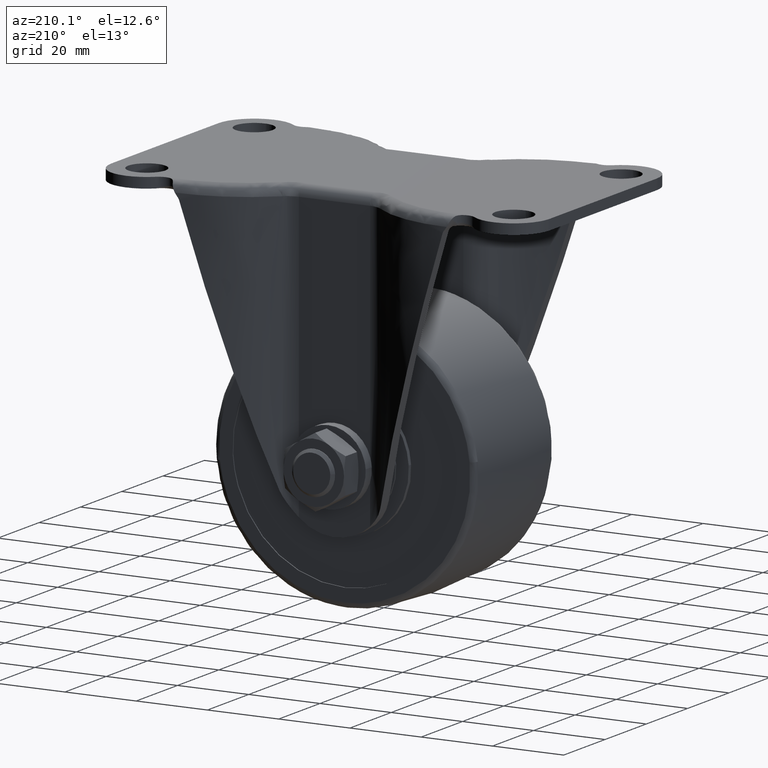
[diagram: clean part render]
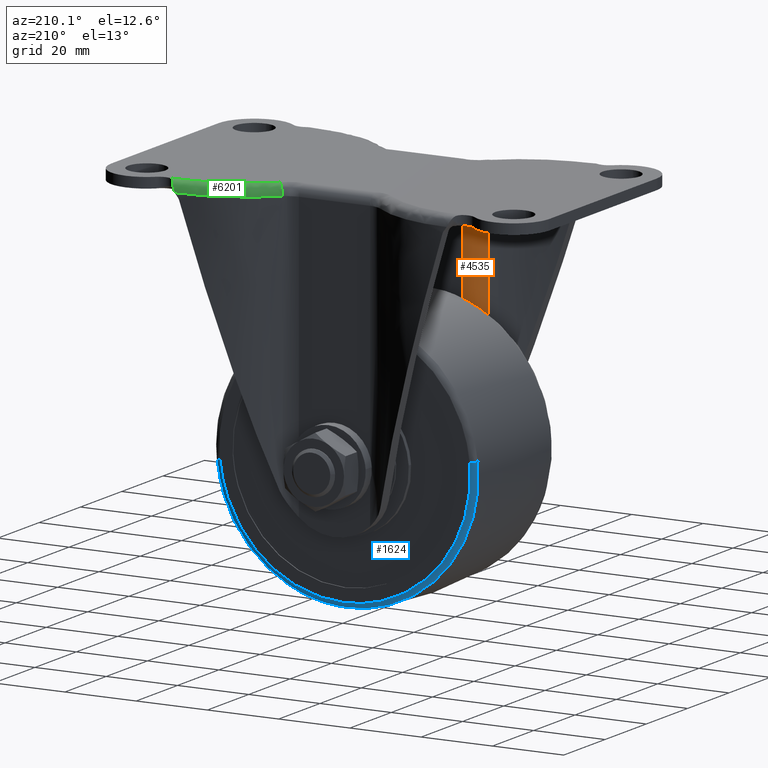
[diagram: same view with three faces highlighted in distinct colors, each labeled with its STEP entity id]
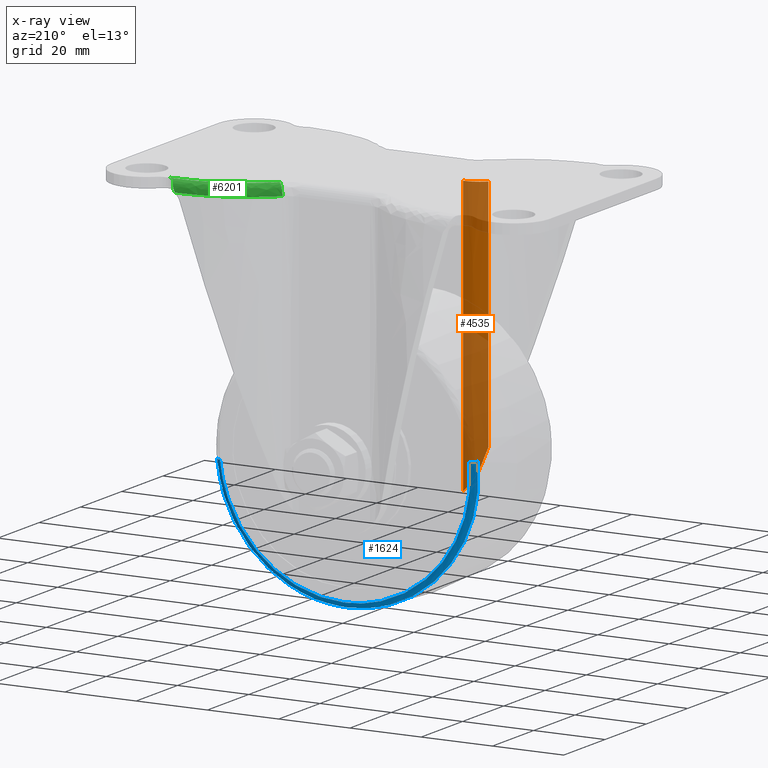
[diagram: x-ray of the same camera — body ghosted, the three highlighted faces saturated]
A machine part, auxiliary view with three faces highlighted in distinct colors.
The next image is the same camera in x-ray (body ghosted, the three faces saturated) — at least one of them is partly hidden behind the body in this view.
Their STEP definitions:

[orange] entity #4535 — the highlighted face is a freeform B-spline surface patch.
#3486=CARTESIAN_POINT('',(-15.730752308236299,-23.383727355105648,-71.515643156612597));
#3487=VERTEX_POINT('',#3486);
#3501=CARTESIAN_POINT('',(-14.298686586812821,-22.299387996278298,-76.032943303354713));
#3502=VERTEX_POINT('',#3501);
#3503=CARTESIAN_POINT('',(-14.298686586812821,-22.299387996278298,-76.032943303354713));
#3504=CARTESIAN_POINT('',(-15.073023069848221,-22.764557225339239,-73.590380608001098));
#3505=CARTESIAN_POINT('',(-15.730752308236299,-23.383727355105631,-71.515643156612597));
#3513=(BOUNDED_CURVE()B_SPLINE_CURVE(2,(#3503,#3504,#3505),.UNSPECIFIED.,.F.,.U.)CURVE()GEOMETRIC_REPRESENTATION_ITEM()QUASI_UNIFORM_CURVE()RATIONAL_B_SPLINE_CURVE((1.0,0.994267504772959,1.0))REPRESENTATION_ITEM(''));
#3514=EDGE_CURVE('',#3502,#3487,#3513,.T.);
#3711=CARTESIAN_POINT('',(-9.973043999999890,-21.100000000000001,-82.704393145217892));
#3712=VERTEX_POINT('',#3711);
#3713=CARTESIAN_POINT('',(-14.298686586812810,-22.299387996278561,-76.032943303354770));
#3714=CARTESIAN_POINT('',(-14.095654674735041,-22.177420092033991,-76.673386037582461));
#3715=CARTESIAN_POINT('',(-13.852419175674211,-22.042892852302799,-77.292334523167710));
#3716=CARTESIAN_POINT('',(-13.286604802238640,-21.774825958858010,-78.493339155701548));
#3717=CARTESIAN_POINT('',(-12.964040484386651,-21.641141067435090,-79.075370962538969));
#3718=CARTESIAN_POINT('',(-12.507680185186979,-21.490951959161251,-79.781681343823834));
#3719=CARTESIAN_POINT('',(-12.413891389612630,-21.461826516318869,-79.921612563622631));
#3720=CARTESIAN_POINT('',(-12.222124973507420,-21.406076116000069,-80.197581246204521));
#3721=CARTESIAN_POINT('',(-12.124024630329229,-21.379409943788570,-80.333810408919348));
#3722=CARTESIAN_POINT('',(-11.823063145983721,-21.303644959530391,-80.737305924257328));
#3723=CARTESIAN_POINT('',(-11.613551615439100,-21.258768572167529,-80.999387518208934));
#3724=CARTESIAN_POINT('',(-11.176502485969291,-21.183699821594342,-81.509931967904151));
#3725=CARTESIAN_POINT('',(-10.948966336241231,-21.153496808395989,-81.758394647658363));
#3726=CARTESIAN_POINT('',(-10.475245238166799,-21.111654860647558,-82.241683442371823));
#3727=CARTESIAN_POINT('',(-10.229063300052800,-21.100000010509159,-82.476510024690654));
#3728=CARTESIAN_POINT('',(-9.973043999999893,-21.100000000000009,-82.704393145217892));
#3729=B_SPLINE_CURVE_WITH_KNOTS('',3,(#3713,#3714,#3715,#3716,#3717,#3718,#3719,#3720,#3721,#3722,#3723,#3724,#3725,#3726,#3727,#3728),.UNSPECIFIED.,.F.,.U.,(4,2,2,2,2,2,2,4),(0.0,0.249999999999996,0.499999999999992,0.562499999999992,0.624999999999994,0.749999999999996,0.874999999999998,1.0),.UNSPECIFIED.);
#3730=EDGE_CURVE('',#3502,#3712,#3729,.T.);
#3887=CARTESIAN_POINT('',(-15.730752308236299,-23.383727355105648,-5.400000000000000));
#3888=VERTEX_POINT('',#3887);
#3922=CARTESIAN_POINT('',(-15.730752308236299,-23.383727355105648,-71.515643156612597));
#3923=CARTESIAN_POINT('',(-15.730752308236299,-23.383727355105648,-5.400000000000000));
#3924=QUASI_UNIFORM_CURVE('',1,(#3922,#3923),.UNSPECIFIED.,.F.,.U.);
#3925=EDGE_CURVE('',#3487,#3888,#3924,.T.);
#4496=CARTESIAN_POINT('',(-15.950432461907139,-23.598235598282340,-84.637002973848325));
#4497=CARTESIAN_POINT('',(-15.950432461907139,-23.598235598282340,-3.419074925653803));
#4498=CARTESIAN_POINT('',(-13.355080985150313,-20.969627641289470,-84.637002973848340));
#4499=CARTESIAN_POINT('',(-13.355080985150313,-20.969627641289470,-3.419074925653803));
#4500=CARTESIAN_POINT('',(-9.663616085908981,-21.105701066833142,-84.637002973848340));
#4501=CARTESIAN_POINT('',(-9.663616085908981,-21.105701066833142,-3.419074925653803));
#4509=(BOUNDED_SURFACE()B_SPLINE_SURFACE(1,2,((#4496,#4498,#4500),(#4497,#4499,#4501)),.UNSPECIFIED.,.F.,.F.,.U.)B_SPLINE_SURFACE_WITH_KNOTS((2,2),(3,3),(0.0,81.217928048194537),(0.0,7.061585249905714),.UNSPECIFIED.)GEOMETRIC_REPRESENTATION_ITEM()RATIONAL_B_SPLINE_SURFACE(((0.999478258689410,0.911144855116366,0.991249597602768),(0.999478258689410,0.911144855116366,0.991249597602768)))REPRESENTATION_ITEM('')SURFACE());
#4510=ORIENTED_EDGE('',*,*,#3925,.T.);
#4511=CARTESIAN_POINT('',(-9.973044000000000,-21.100000000000001,-5.400000000000000));
#4512=VERTEX_POINT('',#4511);
#4513=CARTESIAN_POINT('',(-15.730752308236310,-23.383727355105641,-5.400000000000000));
#4514=CARTESIAN_POINT('',(-13.304804912206047,-21.100000136763192,-5.400000000000000));
#4515=CARTESIAN_POINT('',(-9.973044000000000,-21.100000000000009,-5.400000000000000));
#4523=(BOUNDED_CURVE()B_SPLINE_CURVE(2,(#4513,#4514,#4515),.UNSPECIFIED.,.F.,.U.)CURVE()GEOMETRIC_REPRESENTATION_ITEM()QUASI_UNIFORM_CURVE()RATIONAL_B_SPLINE_CURVE((1.0,0.929550354729903,1.0))REPRESENTATION_ITEM(''));
#4524=EDGE_CURVE('',#3888,#4512,#4523,.T.);
#4525=ORIENTED_EDGE('',*,*,#4524,.T.);
#4526=CARTESIAN_POINT('',(-9.973043999999890,-21.100000000000001,-82.704393145217892));
#4527=CARTESIAN_POINT('',(-9.973044000000000,-21.100000000000001,-5.400000000000000));
#4528=QUASI_UNIFORM_CURVE('',1,(#4526,#4527),.UNSPECIFIED.,.F.,.U.);
#4529=EDGE_CURVE('',#3712,#4512,#4528,.T.);
#4530=ORIENTED_EDGE('',*,*,#4529,.F.);
#4531=ORIENTED_EDGE('',*,*,#3730,.F.);
#4532=ORIENTED_EDGE('',*,*,#3514,.T.);
#4533=EDGE_LOOP('',(#4510,#4525,#4530,#4531,#4532));
#4534=FACE_OUTER_BOUND('',#4533,.T.);
#4535=ADVANCED_FACE('',(#4534),#4509,.T.);

[blue] entity #1624 — the highlighted face is a freeform B-spline surface patch.
#1392=CARTESIAN_POINT('',(-35.049223704759932,19.0,-64.964549374233371));
#1393=VERTEX_POINT('',#1392);
#1394=CARTESIAN_POINT('',(0.0,19.0,-103.727084639409000));
#1395=VERTEX_POINT('',#1394);
#1396=CARTESIAN_POINT('',(-35.049223704759918,19.0,-64.964549374233371));
#1397=CARTESIAN_POINT('',(-35.227084656542004,18.999999999999996,-66.727800784403442));
#1398=CARTESIAN_POINT('',(-35.227084656101013,19.0,-68.499999998316255));
#1399=CARTESIAN_POINT('',(-35.227084647335140,18.999999999999993,-103.727084638609470));
#1400=CARTESIAN_POINT('',(0.0,19.0,-103.727084639409000));
#1408=(BOUNDED_CURVE()B_SPLINE_CURVE(2,(#1396,#1397,#1398,#1399,#1400),.UNSPECIFIED.,.F.,.U.)B_SPLINE_CURVE_WITH_KNOTS((3,2,3),(0.732576558916030,0.750000000000000,1.0),.UNSPECIFIED.)CURVE()GEOMETRIC_REPRESENTATION_ITEM()RATIONAL_B_SPLINE_CURVE((0.962019632126639,0.979587169032438,1.0,0.707106781186548,1.0))REPRESENTATION_ITEM(''));
#1409=EDGE_CURVE('',#1393,#1395,#1408,.T.);
#1426=CARTESIAN_POINT('',(35.049223704759932,19.0,-72.035450625766615));
#1427=VERTEX_POINT('',#1426);
#1443=CARTESIAN_POINT('',(0.0,19.0,-103.727084639409000));
#1444=CARTESIAN_POINT('',(31.852456536322716,19.0,-103.727084640293230));
#1445=CARTESIAN_POINT('',(35.049223704759932,18.999999999999996,-72.035450625766615));
#1453=(BOUNDED_CURVE()B_SPLINE_CURVE(2,(#1443,#1444,#1445),.UNSPECIFIED.,.F.,.U.)B_SPLINE_CURVE_WITH_KNOTS((3,3),(0.0,0.232576558916030),.UNSPECIFIED.)CURVE()GEOMETRIC_REPRESENTATION_ITEM()RATIONAL_B_SPLINE_CURVE((1.0,0.727519612154109,0.962019632126639))REPRESENTATION_ITEM(''));
#1454=EDGE_CURVE('',#1395,#1427,#1453,.T.);
#1496=CARTESIAN_POINT('',(-36.535838923384723,17.632243361924829,-64.814592994570432));
#1497=VERTEX_POINT('',#1496);
#1498=CARTESIAN_POINT('',(-35.049223704759925,18.999999999999996,-64.964549374233371));
#1499=CARTESIAN_POINT('',(-36.415394255323157,18.999999985096558,-64.826742369883107));
#1500=CARTESIAN_POINT('',(-36.535838923384723,17.632243361924832,-64.814592994570432));
#1508=(BOUNDED_CURVE()B_SPLINE_CURVE(2,(#1498,#1499,#1500),.UNSPECIFIED.,.F.,.U.)B_SPLINE_CURVE_WITH_KNOTS((3,3),(-1.722517510963546,-0.277816527753985),.UNSPECIFIED.)CURVE()GEOMETRIC_REPRESENTATION_ITEM()RATIONAL_B_SPLINE_CURVE((0.892725166940150,0.658450696021580,0.892616855732978))REPRESENTATION_ITEM(''));
#1509=EDGE_CURVE('',#1393,#1497,#1508,.T.);
#1526=CARTESIAN_POINT('',(36.535838923384659,17.632243361925511,-72.185407005429596));
#1527=VERTEX_POINT('',#1526);
#1543=CARTESIAN_POINT('',(35.049223704759925,18.999999999999996,-72.035450625766615));
#1544=CARTESIAN_POINT('',(36.415394255322518,18.999999985096537,-72.173257630116851));
#1545=CARTESIAN_POINT('',(36.535838923384659,17.632243361925521,-72.185407005429596));
#1553=(BOUNDED_CURVE()B_SPLINE_CURVE(2,(#1543,#1544,#1545),.UNSPECIFIED.,.F.,.U.)B_SPLINE_CURVE_WITH_KNOTS((3,3),(-1.722517510963534,-0.277816527754478),.UNSPECIFIED.)CURVE()GEOMETRIC_REPRESENTATION_ITEM()RATIONAL_B_SPLINE_CURVE((0.892725166940146,0.658450696021662,0.892616855732818))REPRESENTATION_ITEM(''));
#1554=EDGE_CURVE('',#1427,#1527,#1553,.T.);
#1559=CARTESIAN_POINT('',(-34.851411962647248,18.996679263247195,-63.997473828572140));
#1560=CARTESIAN_POINT('',(-34.900404855336106,18.996679263247199,-64.483172269236363));
#1561=CARTESIAN_POINT('',(-38.475410714377617,18.996679263247206,-99.924532756555806));
#1562=CARTESIAN_POINT('',(-3.525438978910916,18.996679263247199,-103.449971735466690));
#1563=CARTESIAN_POINT('',(31.424532756555781,18.996679263247206,-106.975410714377600));
#1564=CARTESIAN_POINT('',(34.999538615570749,18.996679263247202,-71.534050227321472));
#1565=CARTESIAN_POINT('',(35.048531508233644,18.996679263247195,-71.048351786914495));
#1566=CARTESIAN_POINT('',(-36.404454513652411,19.101011068013381,-63.796833041371443));
#1567=CARTESIAN_POINT('',(-36.455630619093853,19.101011068013371,-64.304175091371079));
#1568=CARTESIAN_POINT('',(-40.189945266689932,19.101011068013388,-101.324867313121090));
#1569=CARTESIAN_POINT('',(-3.682538976784432,19.101011068013381,-105.007406289905480));
#1570=CARTESIAN_POINT('',(32.824867313121047,19.101011068013388,-108.689945266689920));
#1571=CARTESIAN_POINT('',(36.559181960689351,19.101011068013385,-71.669253045214973));
#1572=CARTESIAN_POINT('',(36.610358066103693,19.101011068013381,-71.161910995483993));
#1573=CARTESIAN_POINT('',(-36.438251003506544,17.532569941823212,-63.792466802774477));
#1574=CARTESIAN_POINT('',(-36.489474618868165,17.532569941823208,-64.300279849542903));
#1575=CARTESIAN_POINT('',(-40.227256059986743,17.532569941823205,-101.355340652439850));
#1576=CARTESIAN_POINT('',(-3.685957703773449,17.532569941823215,-105.041298356213300));
#1577=CARTESIAN_POINT('',(32.855340652439864,17.532569941823205,-108.727256059986760));
#1578=CARTESIAN_POINT('',(36.593122093530695,17.532569941823208,-71.672195257365090));
#1579=CARTESIAN_POINT('',(36.644345708865181,17.532569941823208,-71.164382210865568));
#1587=(BOUNDED_SURFACE()B_SPLINE_SURFACE(2,2,((#1559,#1566,#1573),(#1560,#1567,#1574),(#1561,#1568,#1575),(#1562,#1569,#1576),(#1563,#1570,#1577),(#1564,#1571,#1578),(#1565,#1572,#1579)),.UNSPECIFIED.,.F.,.F.,.U.)B_SPLINE_SURFACE_WITH_KNOTS((3,1,2,1,3),(3,3),(0.0,1.217016806925543,62.067857129850552,122.918697452775600,124.135714259045200),(0.0,2.564993725355518),.UNSPECIFIED.)GEOMETRIC_REPRESENTATION_ITEM()RATIONAL_B_SPLINE_SURFACE(((0.928044764976336,0.641309606291205,0.927924479441126),(0.922671357984727,0.637596404458404,0.922551768906369),(0.648627601515759,0.448223111056810,0.648543531736859),(0.917297950993118,0.633883202625603,0.917179058371612),(0.648627601515759,0.448223111056810,0.648543531736859),(0.922671357981831,0.637596404456403,0.922551768903473),(0.928044764970544,0.641309606287203,0.927924479435334)))REPRESENTATION_ITEM('')SURFACE());
#1588=ORIENTED_EDGE('',*,*,#1454,.T.);
#1589=ORIENTED_EDGE('',*,*,#1554,.T.);
#1590=CARTESIAN_POINT('',(0.0,17.632242451286409,-105.221243912739000));
#1591=VERTEX_POINT('',#1590);
#1592=CARTESIAN_POINT('',(0.0,17.632242451286409,-105.221243912739000));
#1593=CARTESIAN_POINT('',(33.203480704234792,17.632242906607491,-105.221243907292730));
#1594=CARTESIAN_POINT('',(36.535838923384659,17.632243361925514,-72.185407005429596));
#1602=(BOUNDED_CURVE()B_SPLINE_CURVE(2,(#1592,#1593,#1594),.UNSPECIFIED.,.F.,.U.)B_SPLINE_CURVE_WITH_KNOTS((3,3),(0.0,0.232576558891007),.UNSPECIFIED.)CURVE()GEOMETRIC_REPRESENTATION_ITEM()RATIONAL_B_SPLINE_CURVE((1.0,0.727519612183426,0.962019632076178))REPRESENTATION_ITEM(''));
#1603=EDGE_CURVE('',#1591,#1527,#1602,.T.);
#1604=ORIENTED_EDGE('',*,*,#1603,.F.);
#1605=CARTESIAN_POINT('',(-36.535838923384716,17.632243361924832,-64.814592994570432));
#1606=CARTESIAN_POINT('',(-36.721243863648667,17.632243341213112,-66.652632839731339));
#1607=CARTESIAN_POINT('',(-36.721243866364922,17.632243318307051,-68.500000010370528));
#1608=CARTESIAN_POINT('',(-36.721243920357516,17.632242862989369,-105.221243917663590));
#1609=CARTESIAN_POINT('',(0.0,17.632242451286409,-105.221243912739000));
#1617=(BOUNDED_CURVE()B_SPLINE_CURVE(2,(#1605,#1606,#1607,#1608,#1609),.UNSPECIFIED.,.F.,.U.)B_SPLINE_CURVE_WITH_KNOTS((3,2,3),(0.732576558891010,0.750000000000000,1.0),.UNSPECIFIED.)CURVE()GEOMETRIC_REPRESENTATION_ITEM()RATIONAL_B_SPLINE_CURVE((0.962019632076184,0.979587169003125,1.0,0.707106781186548,1.0))REPRESENTATION_ITEM(''));
#1618=EDGE_CURVE('',#1497,#1591,#1617,.T.);
#1619=ORIENTED_EDGE('',*,*,#1618,.F.);
#1620=ORIENTED_EDGE('',*,*,#1509,.F.);
#1621=ORIENTED_EDGE('',*,*,#1409,.T.);
#1622=EDGE_LOOP('',(#1588,#1589,#1604,#1619,#1620,#1621));
#1623=FACE_OUTER_BOUND('',#1622,.T.);
#1624=ADVANCED_FACE('',(#1623),#1587,.T.);

[green] entity #6201 — the highlighted face is a freeform B-spline surface patch.
#6064=CARTESIAN_POINT('',(13.520337484486866,25.285715071790804,-2.940773352022837));
#6065=CARTESIAN_POINT('',(13.520337484486957,25.285715071790683,-2.920446212820342));
#6066=CARTESIAN_POINT('',(13.520337484499025,25.285715071773112,2.190127E-012));
#6067=CARTESIAN_POINT('',(15.539829388540236,23.175916441917103,-1.544144E-014));
#6068=CARTESIAN_POINT('',(15.553885747281967,23.161231517280967,-3.079295E-014));
#6069=CARTESIAN_POINT('',(17.471505056455989,29.066843247102138,-2.941416410444106));
#6070=CARTESIAN_POINT('',(17.471505113082678,29.066843186591743,-2.921084825132047));
#6071=CARTESIAN_POINT('',(17.471513735848674,29.066833970074185,-4.000550E-011));
#6072=CARTESIAN_POINT('',(19.177304304167997,26.655924949235835,2.820639E-013));
#6073=CARTESIAN_POINT('',(19.189177202259550,26.639144183104534,5.624853E-013));
#6074=CARTESIAN_POINT('',(22.273816805811446,31.948629234679345,-2.924224807015083));
#6075=CARTESIAN_POINT('',(22.273816804760322,31.948629235801100,-2.904012054268799));
#6076=CARTESIAN_POINT('',(22.273816644657913,31.948629406711547,3.552967E-012));
#6077=CARTESIAN_POINT('',(23.587685176311258,29.323737940655192,-2.505023E-014));
#6078=CARTESIAN_POINT('',(23.596830153352059,29.305467792766375,-4.995457E-014));
#6079=CARTESIAN_POINT('',(32.146389793353570,35.196403881806098,-2.877414883346678));
#6080=CARTESIAN_POINT('',(32.146389793365572,35.196403881845512,-2.857525688949091));
#6081=CARTESIAN_POINT('',(32.146389795208428,35.196403887826982,-3.207893E-012));
#6082=CARTESIAN_POINT('',(32.673198342887211,32.361531134020908,2.261719E-014));
#6083=CARTESIAN_POINT('',(32.676865111703968,32.341799443923442,4.510266E-014));
#6084=CARTESIAN_POINT('',(37.135707074053286,35.780788913801949,-2.849653190637116));
#6085=CARTESIAN_POINT('',(37.135707061183446,35.780788909527040,-2.829955889913349));
#6086=CARTESIAN_POINT('',(37.135705208313247,35.780788245601620,2.105488E-011));
#6087=CARTESIAN_POINT('',(37.272638908640602,32.929635160967266,-1.484472E-013));
#6088=CARTESIAN_POINT('',(37.273592014193454,32.909790153378715,-2.960299E-013));
#6089=CARTESIAN_POINT('',(42.045181454667173,35.370911575897573,-2.822522623009044));
#6090=CARTESIAN_POINT('',(42.045181451611846,35.370911576263651,-2.803012853505490));
#6091=CARTESIAN_POINT('',(42.045181012647255,35.370911628858394,5.243886E-012));
#6092=CARTESIAN_POINT('',(41.810598183019586,32.577749992719241,-3.697191E-014));
#6093=CARTESIAN_POINT('',(41.808965405784214,32.558308626352428,-7.372850E-014));
#6101=(BOUNDED_SURFACE()B_SPLINE_SURFACE(2,3,((#6064,#6069,#6074,#6079,#6084,#6089),(#6065,#6070,#6075,#6080,#6085,#6090),(#6066,#6071,#6076,#6081,#6086,#6091),(#6067,#6072,#6077,#6082,#6087,#6092),(#6068,#6073,#6078,#6083,#6088,#6093)),.UNSPECIFIED.,.F.,.F.,.U.)B_SPLINE_SURFACE_WITH_KNOTS((3,1,1,3),(4,2,4),(0.0,0.048049609295350,4.853010126651670,4.901060148125738),(0.0,16.406642034887572,31.189184153586769),.UNSPECIFIED.)GEOMETRIC_REPRESENTATION_ITEM()RATIONAL_B_SPLINE_SURFACE(((1.005857864878768,1.005857864878768,1.005857864878768,1.005857864878768,1.005857864878768,1.005857864878768),(1.002928932439384,1.002928932439384,1.002928932439384,1.002928932439384,1.002928932439384,1.002928932439384),(0.707106781186546,0.707106781186546,0.707106781186546,0.707106781186546,0.707106781186546,0.707106781186546),(1.002928957564325,1.002928957564325,1.002928957564325,1.002928957564325,1.002928957564325,1.002928957564325),(1.005857915128651,1.005857915128651,1.005857915128651,1.005857915128651,1.005857915128651,1.005857915128651)))REPRESENTATION_ITEM('')SURFACE());
#6102=CARTESIAN_POINT('',(39.175052991063701,34.717374395514987,-0.859597956625110));
#6103=VERTEX_POINT('',#6102);
#6104=CARTESIAN_POINT('',(41.530389135318650,32.617808039589498,0.0));
#6105=VERTEX_POINT('',#6104);
#6106=CARTESIAN_POINT('',(39.175052991063701,34.717374395514987,-0.859597956625110));
#6107=CARTESIAN_POINT('',(39.232745823052689,34.571097902683427,-0.707421177018995));
#6108=CARTESIAN_POINT('',(39.383488099859420,34.246917585640283,-0.442546065965918));
#6109=CARTESIAN_POINT('',(39.747837686203901,33.718588228749162,-0.177008031480873));
#6110=CARTESIAN_POINT('',(40.131610781972988,33.345659469379029,-0.072903869766309));
#6111=CARTESIAN_POINT('',(40.451286272917670,33.110762744297332,-0.034294085439113));
#6112=CARTESIAN_POINT('',(40.657400820026417,32.978690174912359,-0.018944115803473));
#6113=CARTESIAN_POINT('',(40.906144782299407,32.845123548184027,-0.007923482128917));
#6114=CARTESIAN_POINT('',(41.199598467848581,32.716322561372891,-0.001172453913918));
#6115=CARTESIAN_POINT('',(41.416120279752349,32.651839053060783,-0.000405014349323));
#6116=CARTESIAN_POINT('',(41.530389135318650,32.617808039589498,0.0));
#6117=B_SPLINE_CURVE_WITH_KNOTS('',3,(#6106,#6107,#6108,#6109,#6110,#6111,#6112,#6113,#6114,#6115,#6116),.UNSPECIFIED.,.F.,.U.,(4,1,1,1,1,1,1,1,4),(0.383297990293400,0.499462850376981,0.617111757939878,0.749087506464890,0.786000468922959,0.829519132921532,0.879678487441955,0.936500616639375,1.0),.UNSPECIFIED.);
#6118=EDGE_CURVE('',#6103,#6105,#6117,.T.);
#6119=ORIENTED_EDGE('',*,*,#6118,.F.);
#6120=CARTESIAN_POINT('',(38.142106373215348,35.489464346481952,-2.804614684647175));
#6121=VERTEX_POINT('',#6120);
#6122=CARTESIAN_POINT('',(39.175052991063701,34.717374395514987,-0.859597956625110));
#6123=CARTESIAN_POINT('',(39.166724886811600,34.735993119529873,-0.879209274842992));
#6124=CARTESIAN_POINT('',(39.146962102514003,34.779556807041871,-0.925258463561393));
#6125=CARTESIAN_POINT('',(39.105456650550067,34.847311521381911,-1.003220527428054));
#6126=CARTESIAN_POINT('',(39.054065936168300,34.919173901581139,-1.092615255256497));
#6127=CARTESIAN_POINT('',(38.998496070504103,34.988947997036327,-1.187650952767656));
#6128=CARTESIAN_POINT('',(38.928439926540470,35.070283933937681,-1.308672693277553));
#6129=CARTESIAN_POINT('',(38.827070964160782,35.182214282369003,-1.498155269273883));
#6130=CARTESIAN_POINT('',(38.696423550179283,35.304212567507953,-1.760795361216728));
#6131=CARTESIAN_POINT('',(38.549141355344467,35.401753721308403,-2.059247475674938));
#6132=CARTESIAN_POINT('',(38.406551171879869,35.459317586921578,-2.336258451613642));
#6133=CARTESIAN_POINT('',(38.273692218528772,35.487470383465180,-2.582774310559935));
#6134=CARTESIAN_POINT('',(38.184051835129367,35.488828733285267,-2.733898894965507));
#6135=CARTESIAN_POINT('',(38.142106373215348,35.489464346481952,-2.804614684647175));
#6136=B_SPLINE_CURVE_WITH_KNOTS('',3,(#6122,#6123,#6124,#6125,#6126,#6127,#6128,#6129,#6130,#6131,#6132,#6133,#6134,#6135),.UNSPECIFIED.,.F.,.U.,(4,1,1,1,1,1,1,1,1,1,1,4),(0.003998905410968,0.039448268606898,0.087198041317458,0.143335408768616,0.196940662849094,0.250501299987226,0.346041469903320,0.500377943698626,0.647839910677361,0.779852881178985,0.896986467060895,1.0),.UNSPECIFIED.);
#6137=EDGE_CURVE('',#6103,#6121,#6136,.T.);
#6138=ORIENTED_EDGE('',*,*,#6137,.T.);
#6139=CARTESIAN_POINT('',(13.742971939924320,25.495297672985849,-2.900000000000000));
#6140=VERTEX_POINT('',#6139);
#6141=CARTESIAN_POINT('',(13.742971939924320,25.495297672985849,-2.900000000000000));
#6142=CARTESIAN_POINT('',(13.956317376170910,25.693409654442132,-2.899958660849165));
#6143=CARTESIAN_POINT('',(14.392077985325329,26.098055749708969,-2.899874225138392));
#6144=CARTESIAN_POINT('',(15.078035907439640,26.697020121316250,-2.899222162607221));
#6145=CARTESIAN_POINT('',(15.806373550619339,27.303415865435500,-2.898191278954213));
#6146=CARTESIAN_POINT('',(16.579848581468170,27.913141543836758,-2.896738971150467));
#6147=CARTESIAN_POINT('',(17.399352453578999,28.523843976589941,-2.894877271402081));
#6148=CARTESIAN_POINT('',(18.266214336944710,29.132451137176030,-2.892602701852895));
#6149=CARTESIAN_POINT('',(19.181525676039008,29.735869117177000,-2.889916189697221));
#6150=CARTESIAN_POINT('',(20.146309080623109,30.330782307574470,-2.886817423261054));
#6151=CARTESIAN_POINT('',(21.161446902488450,30.913708909629459,-2.883306446703635));
#6152=CARTESIAN_POINT('',(22.227676575240839,31.480985810266581,-2.879383208970075));
#6153=CARTESIAN_POINT('',(23.345566011867771,32.028775120966827,-2.875047690109214));
#6154=CARTESIAN_POINT('',(24.515493583933541,32.553066466017917,-2.870299864950149));
#6155=CARTESIAN_POINT('',(25.737625868733868,33.049682803058182,-2.865139713264311));
#6156=CARTESIAN_POINT('',(27.011895192074469,33.514286650501653,-2.859567214450448));
#6157=CARTESIAN_POINT('',(28.337976532537631,33.942392221360322,-2.853582356403943));
#6158=CARTESIAN_POINT('',(29.715264070085190,34.329364930746543,-2.847185102499812));
#6159=CARTESIAN_POINT('',(31.142847481349740,34.670480420320906,-2.840375517745196));
#6160=CARTESIAN_POINT('',(32.619488184869986,34.960764144619873,-2.833153278815451));
#6161=CARTESIAN_POINT('',(34.143595652377790,35.195693284701449,-2.825519571204250));
#6162=CARTESIAN_POINT('',(35.713204297303427,35.368573184952737,-2.817469745645338));
#6163=CARTESIAN_POINT('',(37.051619817137158,35.461701344645491,-2.810458737269837));
#6164=CARTESIAN_POINT('',(37.866021740389208,35.483907876091052,-2.806098288943902));
#6165=CARTESIAN_POINT('',(38.142106373215348,35.489464346481952,-2.804614684647175));
#6166=B_SPLINE_CURVE_WITH_KNOTS('',3,(#6141,#6142,#6143,#6144,#6145,#6146,#6147,#6148,#6149,#6150,#6151,#6152,#6153,#6154,#6155,#6156,#6157,#6158,#6159,#6160,#6161,#6162,#6163,#6164,#6165),.UNSPECIFIED.,.F.,.U.,(4,1,1,1,1,1,1,1,1,1,1,1,1,1,1,1,1,1,1,1,1,1,4),(0.0,0.031426806929676,0.064189629609072,0.098288465638796,0.133723311607639,0.170494163190204,0.208601015227444,0.248043861793539,0.288822696251835,0.330937511301901,0.374388299019353,0.419175050889742,0.465297757837530,0.512756410250995,0.561550998003715,0.611681510473201,0.663147936557108,0.715950264687390,0.770088482842723,0.825562578559413,0.882372538941041,0.940518350666986,0.970327958371231),.UNSPECIFIED.);
#6167=EDGE_CURVE('',#6140,#6121,#6166,.T.);
#6168=ORIENTED_EDGE('',*,*,#6167,.F.);
#6169=CARTESIAN_POINT('',(15.730752308236500,23.383727355105648,0.0));
#6170=VERTEX_POINT('',#6169);
#6171=CARTESIAN_POINT('',(13.742971939924310,25.495297672985838,-2.900000000000006));
#6172=CARTESIAN_POINT('',(13.742971939924310,25.495297672985831,-2.520390887691237));
#6173=CARTESIAN_POINT('',(13.794708542282750,25.440339149584780,-2.140931135358092));
#6174=CARTESIAN_POINT('',(13.993856879367490,25.228788756922231,-1.439504956924394));
#6175=CARTESIAN_POINT('',(14.141190257727200,25.072280123706619,-1.117814512072748));
#6176=CARTESIAN_POINT('',(14.509168402859711,24.681385967955300,-0.580966157045278));
#6177=CARTESIAN_POINT('',(14.729668385945820,24.447154245577909,-0.366019473772652));
#6178=CARTESIAN_POINT('',(15.210455002259870,23.936426418486640,-0.075479237661884));
#6179=CARTESIAN_POINT('',(15.470552466484850,23.660131263363581,5.717472E-016));
#6180=CARTESIAN_POINT('',(15.730752308236500,23.383727355105631,0.0));
#6181=B_SPLINE_CURVE_WITH_KNOTS('',3,(#6171,#6172,#6173,#6174,#6175,#6176,#6177,#6178,#6179,#6180),.UNSPECIFIED.,.F.,.U.,(4,2,2,2,4),(0.0,0.250000000000000,0.500000000000000,0.750000000000000,1.0),.UNSPECIFIED.);
#6182=EDGE_CURVE('',#6140,#6170,#6181,.T.);
#6183=ORIENTED_EDGE('',*,*,#6182,.T.);
#6184=CARTESIAN_POINT('',(41.530389135318650,32.617808039589498,0.0));
#6185=CARTESIAN_POINT('',(40.431698463770132,32.693875858158911,0.0));
#6186=CARTESIAN_POINT('',(38.079877947086892,32.742539708942552,0.0));
#6187=CARTESIAN_POINT('',(35.148799743707720,32.497765433841629,0.0));
#6188=CARTESIAN_POINT('',(32.177291346499644,32.010084188221207,0.0));
#6189=CARTESIAN_POINT('',(29.820742156053910,31.432840870679879,0.0));
#6190=CARTESIAN_POINT('',(26.824384953872041,30.433887287246801,0.0));
#6191=CARTESIAN_POINT('',(24.125178344063428,29.263904934157178,0.0));
#6192=CARTESIAN_POINT('',(21.045149835110450,27.544899388029570,0.0));
#6193=CARTESIAN_POINT('',(18.321019677262271,25.666722737114469,0.0));
#6194=CARTESIAN_POINT('',(16.532637235135471,24.138632347101549,0.0));
#6195=CARTESIAN_POINT('',(15.730752308236500,23.383727355105648,0.0));
#6196=B_SPLINE_CURVE_WITH_KNOTS('',3,(#6184,#6185,#6186,#6187,#6188,#6189,#6190,#6191,#6192,#6193,#6194,#6195),.UNSPECIFIED.,.F.,.U.,(4,1,1,1,1,1,1,1,1,4),(0.000000988134509,3.303995973178765,7.048526021676921,8.810685733212402,12.334923125439749,14.317339448525569,18.282110873377110,21.145587123443800,24.890126730204909,28.194121117296181),.UNSPECIFIED.);
#6197=EDGE_CURVE('',#6105,#6170,#6196,.T.);
#6198=ORIENTED_EDGE('',*,*,#6197,.F.);
#6199=EDGE_LOOP('',(#6119,#6138,#6168,#6183,#6198));
#6200=FACE_OUTER_BOUND('',#6199,.T.);
#6201=ADVANCED_FACE('',(#6200),#6101,.T.);